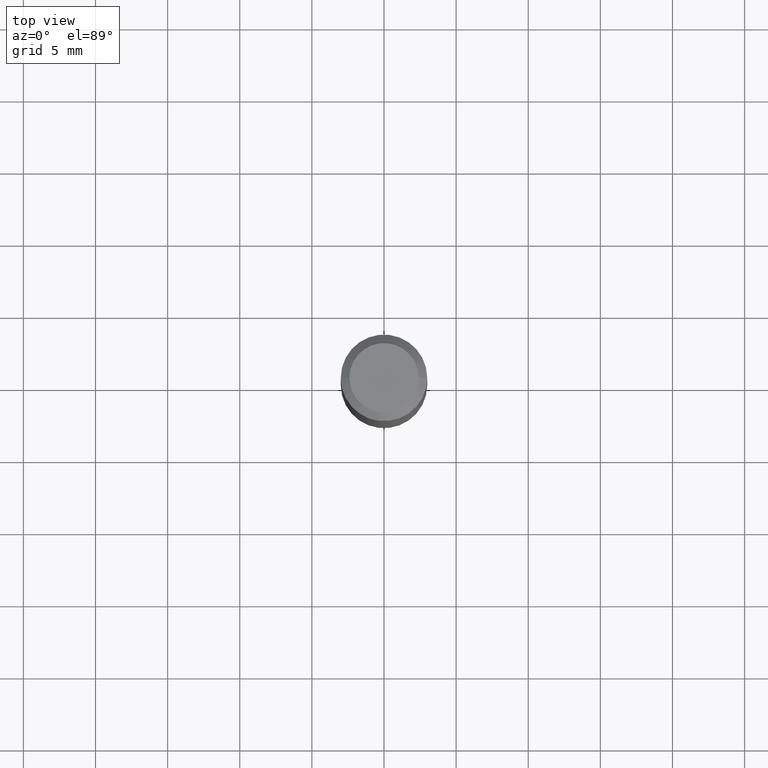
[diagram: clean part render]
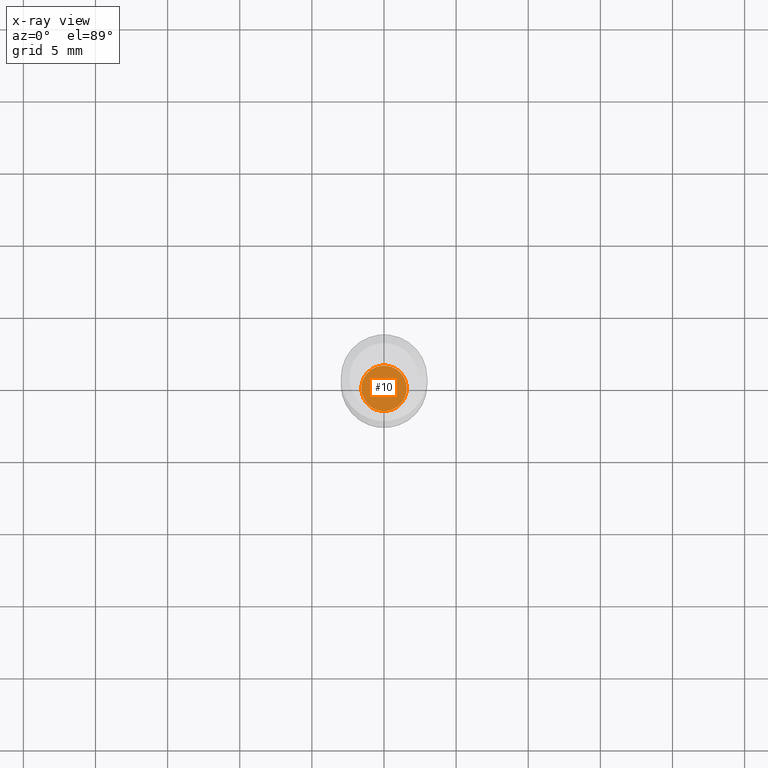
[diagram: x-ray — body ghosted, one internal face saturated and labeled with its STEP entity id]
A machine part, top view, then the same camera in x-ray: the body is ghosted and one INTERNAL B-rep face — a face not visible from any outside direction — is saturated and labeled: STEP entity #10.
In plain terms, the highlighted planar face has unit normal (-0, 0, 1).
Its self-contained STEP definition (entity closure, byte-faithful):
#10 = ADVANCED_FACE ( 'NONE', ( #165 ), #402, .F. ) ;
#24 = CARTESIAN_POINT ( 'NONE',  ( 4.107164859987937107E-29, -5.863942908587062413E-15, -1.679499999999999993 ) ) ;
#34 = CIRCLE ( 'NONE', #274, 0.06199999999999999956 ) ;
#54 = CARTESIAN_POINT ( 'NONE',  ( 0.06199999999999999956, -6.296886594603611075E-15, -1.679499999999999993 ) ) ;
#73 = CARTESIAN_POINT ( 'NONE',  ( -0.06199999999999999956, -5.420757185241689494E-15, -1.679499999999999993 ) ) ;
#84 = CARTESIAN_POINT ( 'NONE',  ( 4.107164859987937107E-29, -5.863942908587062413E-15, -1.679499999999999993 ) ) ;
#91 = AXIS2_PLACEMENT_3D ( 'NONE', #177, #408, #343 ) ;
#94 = VERTEX_POINT ( 'NONE', #73 ) ;
#105 = DIRECTION ( 'NONE',  ( 1.000000000000000000, -6.982962677686270655E-15, 0.000000000000000000 ) ) ;
#165 = FACE_OUTER_BOUND ( 'NONE', #510, .T. ) ;
#177 = CARTESIAN_POINT ( 'NONE',  ( 4.107164859987937107E-29, -5.863942908587062413E-15, -1.679499999999999993 ) ) ;
#199 = EDGE_CURVE ( 'NONE', #94, #271, #266, .T. ) ;
#254 = DIRECTION ( 'NONE',  ( 1.000000000000000000, -6.982962677686265922E-15, 4.876176775795935793E-29 ) ) ;
#263 = ORIENTED_EDGE ( 'NONE', *, *, #199, .F. ) ;
#266 = CIRCLE ( 'NONE', #91, 0.06199999999999999956 ) ;
#271 = VERTEX_POINT ( 'NONE', #54 ) ;
#274 = AXIS2_PLACEMENT_3D ( 'NONE', #24, #393, #105 ) ;
#309 = EDGE_CURVE ( 'NONE', #271, #94, #34, .T. ) ;
#343 = DIRECTION ( 'NONE',  ( 1.000000000000000000, -6.982962677686270655E-15, 0.000000000000000000 ) ) ;
#392 = AXIS2_PLACEMENT_3D ( 'NONE', #84, #473, #254 ) ;
#393 = DIRECTION ( 'NONE',  ( -2.445468806185136597E-29, 3.491481338843145583E-15, 1.000000000000000000 ) ) ;
#394 = ORIENTED_EDGE ( 'NONE', *, *, #309, .F. ) ;
#402 = PLANE ( 'NONE',  #392 ) ;
#408 = DIRECTION ( 'NONE',  ( -2.445468806185136597E-29, 3.491481338843145583E-15, 1.000000000000000000 ) ) ;
#473 = DIRECTION ( 'NONE',  ( -2.438088387897960049E-29, 3.491481338843145188E-15, 1.000000000000000000 ) ) ;
#510 = EDGE_LOOP ( 'NONE', ( #394, #263 ) ) ;